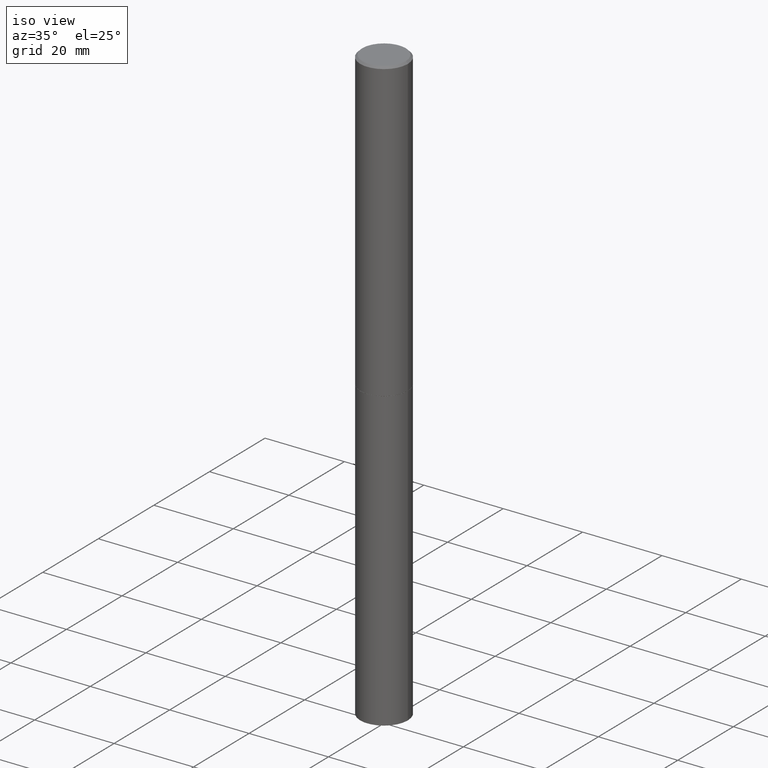
[diagram: clean part render]
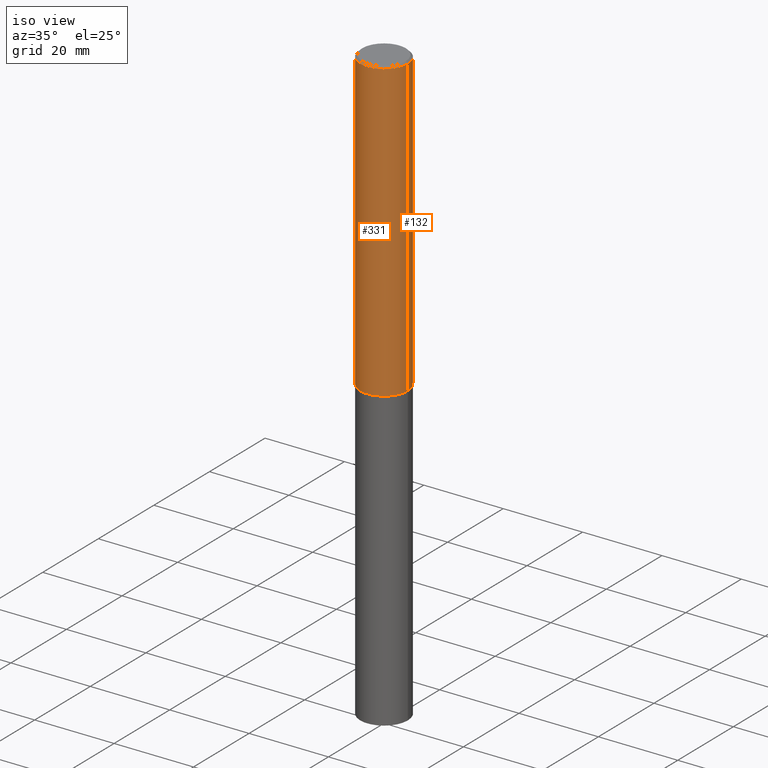
[diagram: same view with one multi-face feature highlighted, each face labeled with its STEP entity id]
A machine part, iso view. The highlighted faces form ONE feature: a constant-radius fillet chain: 2 tangent blend faces with common blend radius 5.9995 mm. The faces share edges in the B-rep.
Their STEP definitions:
[1] entity #132 (Cylinder):
#8 = CYLINDRICAL_SURFACE ( 'NONE', #330, 0.2361999999999998545 ) ;
#15 = CARTESIAN_POINT ( 'NONE',  ( -0.2361999999999997712, 1.579546157692631452E-15, -0.02000000000000007674 ) ) ;
#31 = DIRECTION ( 'NONE',  ( 1.000000000000000000, -6.982962677686266711E-15, 0.000000000000000000 ) ) ;
#36 = DIRECTION ( 'NONE',  ( -2.445468806185136597E-29, 3.491481338843145583E-15, 1.000000000000000000 ) ) ;
#49 = CARTESIAN_POINT ( 'NONE',  ( 7.218290275216666916E-29, -1.030580546786331359E-14, -2.951700000000000212 ) ) ;
#64 = FACE_OUTER_BOUND ( 'NONE', #327, .T. ) ;
#83 = CARTESIAN_POINT ( 'NONE',  ( 4.890937612370292426E-31, -6.982962677686317493E-17, -0.02000000000000007674 ) ) ;
#94 = CIRCLE ( 'NONE', #364, 0.2361999999999999933 ) ;
#98 = CARTESIAN_POINT ( 'NONE',  ( 0.2361999999999999933, -1.195518125233281011E-14, -2.951700000000000212 ) ) ;
#99 = VERTEX_POINT ( 'NONE', #98 ) ;
#112 = DIRECTION ( 'NONE',  ( -2.445468806185136877E-29, 3.491481338843145188E-15, 1.000000000000000000 ) ) ;
#118 = CARTESIAN_POINT ( 'NONE',  ( 0.2361999999999997712, -1.690279253850497193E-15, -0.02000000000000007674 ) ) ;
#123 = DIRECTION ( 'NONE',  ( 1.000000000000000000, -6.982962677686266711E-15, 4.876176775795935793E-29 ) ) ;
#130 = DIRECTION ( 'NONE',  ( -2.445468806185136597E-29, 3.491481338843145583E-15, 1.000000000000000000 ) ) ;
#131 = VERTEX_POINT ( 'NONE', #15 ) ;
#132 = ADVANCED_FACE ( 'NONE', ( #64 ), #8, .T. ) ;
#155 = VERTEX_POINT ( 'NONE', #118 ) ;
#162 = VECTOR ( 'NONE', #311, 39.37007874015748143 ) ;
#170 = EDGE_CURVE ( 'NONE', #295, #131, #266, .T. ) ;
#186 = ORIENTED_EDGE ( 'NONE', *, *, #284, .T. ) ;
#190 = VECTOR ( 'NONE', #112, 39.37007874015748143 ) ;
#191 = AXIS2_PLACEMENT_3D ( 'NONE', #83, #285, #31 ) ;
#204 = CARTESIAN_POINT ( 'NONE',  ( 0.2361999999999998545, -1.649375784469495145E-15, 1.151752954442999387E-29 ) ) ;
#231 = LINE ( 'NONE', #204, #162 ) ;
#254 = DIRECTION ( 'NONE',  ( 1.000000000000000000, -6.982962677686265133E-15, 0.000000000000000000 ) ) ;
#255 = ORIENTED_EDGE ( 'NONE', *, *, #308, .F. ) ;
#258 = CARTESIAN_POINT ( 'NONE',  ( -0.2361999999999998545, 1.678301941865355605E-15, -1.161852468318208056E-29 ) ) ;
#264 = CARTESIAN_POINT ( 'NONE',  ( -0.2362000000000000210, -3.509515605454727710E-15, -2.951700000000000212 ) ) ;
#266 = LINE ( 'NONE', #258, #190 ) ;
#270 = CIRCLE ( 'NONE', #191, 0.2361999999999997712 ) ;
#284 = EDGE_CURVE ( 'NONE', #99, #295, #94, .T. ) ;
#285 = DIRECTION ( 'NONE',  ( -2.445468806185136597E-29, 3.491481338843145583E-15, 1.000000000000000000 ) ) ;
#288 = CARTESIAN_POINT ( 'NONE',  ( 0.000000000000000000, 0.000000000000000000, 0.000000000000000000 ) ) ;
#295 = VERTEX_POINT ( 'NONE', #264 ) ;
#308 = EDGE_CURVE ( 'NONE', #155, #131, #270, .T. ) ;
#311 = DIRECTION ( 'NONE',  ( -2.445468806185136877E-29, 3.491481338843145188E-15, 1.000000000000000000 ) ) ;
#320 = EDGE_CURVE ( 'NONE', #99, #155, #231, .T. ) ;
#327 = EDGE_LOOP ( 'NONE', ( #186, #362, #255, #358 ) ) ;
#330 = AXIS2_PLACEMENT_3D ( 'NONE', #288, #36, #123 ) ;
#358 = ORIENTED_EDGE ( 'NONE', *, *, #320, .F. ) ;
#362 = ORIENTED_EDGE ( 'NONE', *, *, #170, .T. ) ;
#364 = AXIS2_PLACEMENT_3D ( 'NONE', #49, #130, #254 ) ;
[2] entity #331 (Cylinder):
#1 = FACE_OUTER_BOUND ( 'NONE', #103, .T. ) ;
#15 = CARTESIAN_POINT ( 'NONE',  ( -0.2361999999999997712, 1.579546157692631452E-15, -0.02000000000000007674 ) ) ;
#24 = DIRECTION ( 'NONE',  ( -2.445468806185136597E-29, 3.491481338843145583E-15, 1.000000000000000000 ) ) ;
#52 = ORIENTED_EDGE ( 'NONE', *, *, #159, .T. ) ;
#81 = CIRCLE ( 'NONE', #257, 0.2361999999999999933 ) ;
#98 = CARTESIAN_POINT ( 'NONE',  ( 0.2361999999999999933, -1.195518125233281011E-14, -2.951700000000000212 ) ) ;
#99 = VERTEX_POINT ( 'NONE', #98 ) ;
#103 = EDGE_LOOP ( 'NONE', ( #157, #52, #125, #219 ) ) ;
#112 = DIRECTION ( 'NONE',  ( -2.445468806185136877E-29, 3.491481338843145188E-15, 1.000000000000000000 ) ) ;
#115 = CARTESIAN_POINT ( 'NONE',  ( 0.000000000000000000, 0.000000000000000000, 0.000000000000000000 ) ) ;
#118 = CARTESIAN_POINT ( 'NONE',  ( 0.2361999999999997712, -1.690279253850497193E-15, -0.02000000000000007674 ) ) ;
#125 = ORIENTED_EDGE ( 'NONE', *, *, #320, .T. ) ;
#131 = VERTEX_POINT ( 'NONE', #15 ) ;
#143 = DIRECTION ( 'NONE',  ( 1.000000000000000000, -6.982962677686265133E-15, 0.000000000000000000 ) ) ;
#155 = VERTEX_POINT ( 'NONE', #118 ) ;
#157 = ORIENTED_EDGE ( 'NONE', *, *, #170, .F. ) ;
#159 = EDGE_CURVE ( 'NONE', #295, #99, #81, .T. ) ;
#162 = VECTOR ( 'NONE', #311, 39.37007874015748143 ) ;
#170 = EDGE_CURVE ( 'NONE', #295, #131, #266, .T. ) ;
#171 = DIRECTION ( 'NONE',  ( 1.000000000000000000, -6.982962677686266711E-15, 4.876176775795935793E-29 ) ) ;
#173 = DIRECTION ( 'NONE',  ( -2.445468806185136597E-29, 3.491481338843145583E-15, 1.000000000000000000 ) ) ;
#190 = VECTOR ( 'NONE', #112, 39.37007874015748143 ) ;
#199 = AXIS2_PLACEMENT_3D ( 'NONE', #115, #237, #171 ) ;
#204 = CARTESIAN_POINT ( 'NONE',  ( 0.2361999999999998545, -1.649375784469495145E-15, 1.151752954442999387E-29 ) ) ;
#216 = CIRCLE ( 'NONE', #283, 0.2361999999999997712 ) ;
#219 = ORIENTED_EDGE ( 'NONE', *, *, #265, .F. ) ;
#231 = LINE ( 'NONE', #204, #162 ) ;
#237 = DIRECTION ( 'NONE',  ( -2.445468806185136597E-29, 3.491481338843145583E-15, 1.000000000000000000 ) ) ;
#238 = CARTESIAN_POINT ( 'NONE',  ( 7.218290275216666916E-29, -1.030580546786331359E-14, -2.951700000000000212 ) ) ;
#257 = AXIS2_PLACEMENT_3D ( 'NONE', #238, #173, #143 ) ;
#258 = CARTESIAN_POINT ( 'NONE',  ( -0.2361999999999998545, 1.678301941865355605E-15, -1.161852468318208056E-29 ) ) ;
#264 = CARTESIAN_POINT ( 'NONE',  ( -0.2362000000000000210, -3.509515605454727710E-15, -2.951700000000000212 ) ) ;
#265 = EDGE_CURVE ( 'NONE', #131, #155, #216, .T. ) ;
#266 = LINE ( 'NONE', #258, #190 ) ;
#275 = DIRECTION ( 'NONE',  ( 1.000000000000000000, -6.982962677686266711E-15, 0.000000000000000000 ) ) ;
#283 = AXIS2_PLACEMENT_3D ( 'NONE', #302, #24, #275 ) ;
#295 = VERTEX_POINT ( 'NONE', #264 ) ;
#302 = CARTESIAN_POINT ( 'NONE',  ( 4.890937612370292426E-31, -6.982962677686317493E-17, -0.02000000000000007674 ) ) ;
#311 = DIRECTION ( 'NONE',  ( -2.445468806185136877E-29, 3.491481338843145188E-15, 1.000000000000000000 ) ) ;
#320 = EDGE_CURVE ( 'NONE', #99, #155, #231, .T. ) ;
#331 = ADVANCED_FACE ( 'NONE', ( #1 ), #339, .T. ) ;
#339 = CYLINDRICAL_SURFACE ( 'NONE', #199, 0.2361999999999998545 ) ;